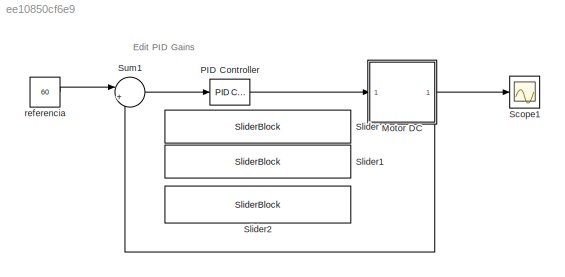
MODEL slx_ee10850cf6e9
KIND model
CONFIG AbsTol = auto
CONFIG EnableMultiTasking = off
CONFIG FixedStep = auto
CONFIG MaxStep = auto
CONFIG MinStep = auto
CONFIG PreLoadFcn = load properties.mat
CONFIG RelTol = 1e-3
CONFIG SampleTimeConstraint = Unconstrained
CONFIG SolverName = VariableStepAuto
CONFIG StartTime = 0.0
CONFIG StopTime = 10.0
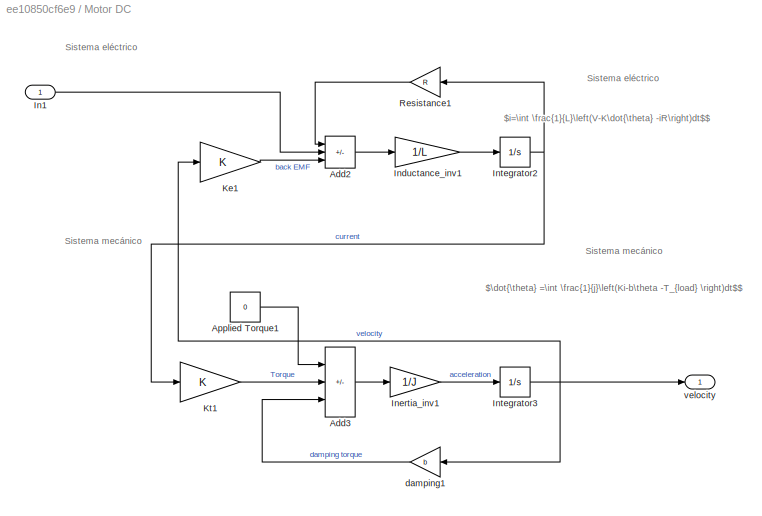
BLOCK [SubSystem] Motor DC
BLOCK [Sum] Motor DC/Add2
  IconShape = rectangular
  Inputs = -+-
BLOCK [Sum] Motor DC/Add3
  IconShape = rectangular
  Inputs = ++-
BLOCK [Constant] Motor DC/Applied Torque1
  Value = 0
BLOCK [Inport] Motor DC/In1
BLOCK [Gain] Motor DC/Inductance_inv1
  Gain = 1/L
BLOCK [Gain] Motor DC/Inertia_inv1
  Gain = 1/J
BLOCK [Integrator] Motor DC/Integrator2
BLOCK [Integrator] Motor DC/Integrator3
BLOCK [Gain] Motor DC/Ke1
  Gain = K
BLOCK [Gain] Motor DC/Kt1
  Gain = K
BLOCK [Gain] Motor DC/Resistance1
  Gain = R
BLOCK [Gain] Motor DC/damping1
  Gain = b
BLOCK [Outport] Motor DC/velocity
BLOCK [Reference] PID Controller  REF=slpidlib/PID Controller
  SourceBlock = slpidlib/PID Controller
  SourceType = PID 1dof
BLOCK [Scope] Scope1
  Floating = off
  NumInputPorts = 1
  ScopeSpecificationString = Simulink.scopes.TimeScopeBlockCfg('CurrentConfiguration', extmgr.ConfigurationSet(extmgr.Configuration('Core','General UI',true,'FigureColor',[0.129411764705882 0.129411764705882 0.129411764705882]),extmgr.Configuration('Core','Source UI',true),extmgr.Configuration('Sources','WiredSimulink',true),extmgr.Configuration('Visuals','Time Domain',true,'SerializedDisplays',{struct('MinYLimReal','21.85355...<+1785ch>
BLOCK [SliderBlock] Slider
  ScaleMax = 50
BLOCK [SliderBlock] Slider1
  ScaleMax = 50
BLOCK [SliderBlock] Slider2
  ScaleMax = 50
BLOCK [Sum] Sum1
  Inputs = |+-
BLOCK [Constant] referencia
  Value = 60
ANNOTATION (root): Edit PID Gains
ANNOTATION Motor DC: Sistema eléctrico
ANNOTATION Motor DC: Sistema mecánico
ANNOTATION Motor DC: $\dot{\theta} =\int \frac{1}{j}\left(Ki-b\theta -T_{load} \right)dt$$
ANNOTATION Motor DC: $i=\int \frac{1}{L}\left(V-K\dot{\theta} -iR\right)dt$$
LINE Motor DC/Add2:1 -> Motor DC/Inductance_inv1:1
LINE Motor DC/Add3:1 -> Motor DC/Inertia_inv1:1
LINE Motor DC/Applied Torque1:1 -> Motor DC/Add3:1
LINE Motor DC/In1:1 -> Motor DC/Add2:2
LINE Motor DC/Inductance_inv1:1 -> Motor DC/Integrator2:1
LINE Motor DC/Inertia_inv1:1 -> Motor DC/Integrator3:1
NET Motor DC/Integrator2:1 -> Motor DC/Kt1:1, Motor DC/Resistance1:1
NET Motor DC/Integrator3:1 -> Motor DC/Ke1:1, Motor DC/damping1:1, Motor DC/velocity:1
LINE Motor DC/Ke1:1 -> Motor DC/Add2:3
LINE Motor DC/Kt1:1 -> Motor DC/Add3:2
LINE Motor DC/Resistance1:1 -> Motor DC/Add2:1
LINE Motor DC/damping1:1 -> Motor DC/Add3:3
NET Motor DC:1 -> Scope1:1, Sum1:2
LINE PID Controller:1 -> Motor DC:1
LINE Sum1:1 -> PID Controller:1
LINE referencia:1 -> Sum1:1
note: NET lines group one-source signal fan-out (src -> all destinations, sorted); 1:1 wires keep LINE
